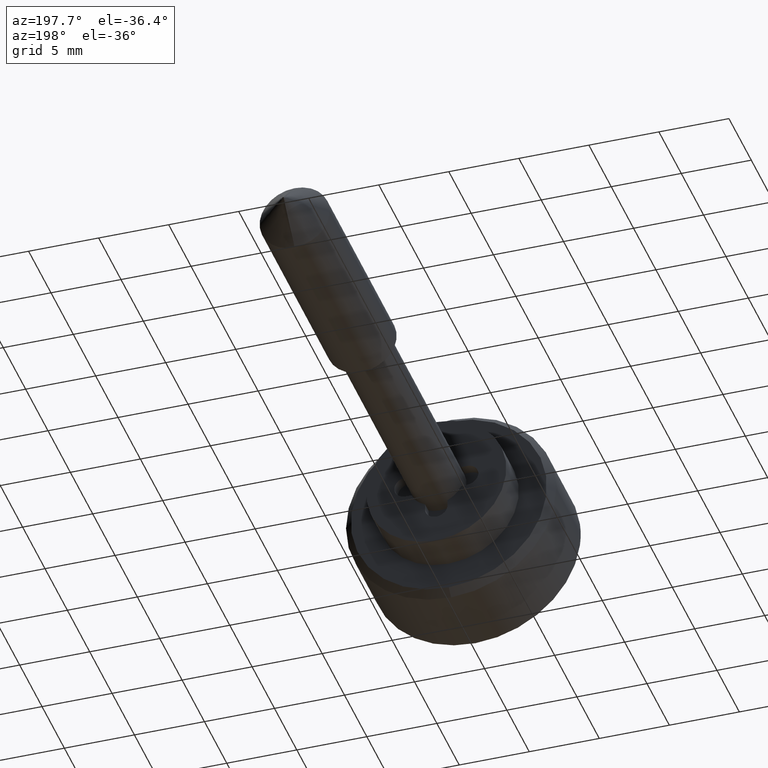
[diagram: clean part render]
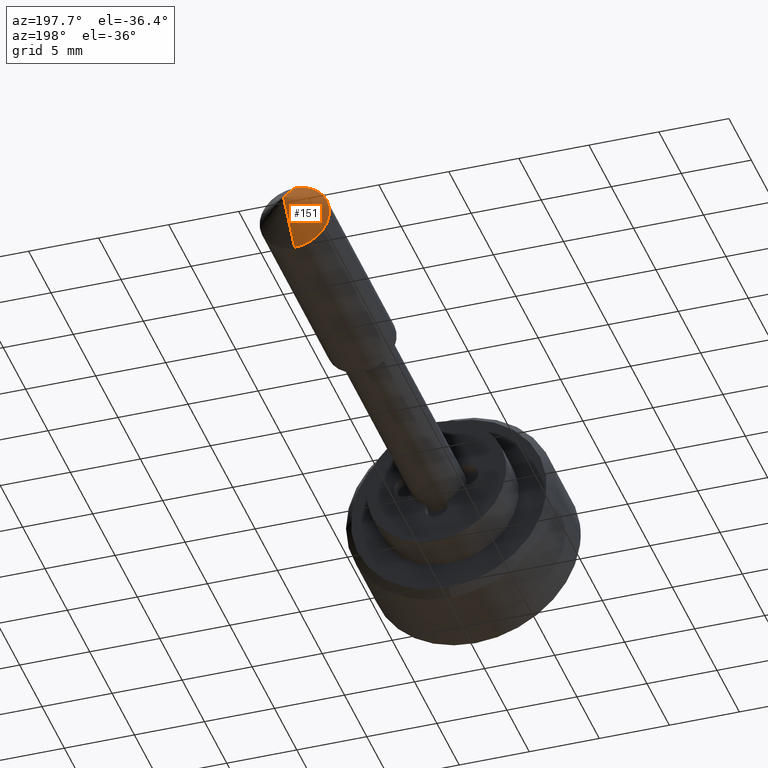
[diagram: same view with one face highlighted and labeled with its STEP entity id]
A machine part, auxiliary view. The second image highlights one B-rep face of the part: STEP entity #151.
In plain terms, the highlighted face is a freeform B-spline surface patch.
Its self-contained STEP definition (entity closure, byte-faithful):
#151=ADVANCED_FACE('',(#550),#549,.T.);
#549=( BOUNDED_SURFACE() B_SPLINE_SURFACE( 2,1,((#809,#810),(#811,#812),(#813,#814),(#815,#816),(#817,#818)), .UNSPECIFIED.,.F.,.F.,.F.) B_SPLINE_SURFACE_WITH_KNOTS((3,2,3),(2,2),(0.00000000000E+00,5.00000000000E-01,1.00000000000E+00),(0.00000000000E+00,1.00000000000E+00), .UNSPECIFIED. ) GEOMETRIC_REPRESENTATION_ITEM() RATIONAL_B_SPLINE_SURFACE(((1.00000000000E+00,1.00000000000E+00),(7.07106781187E-01,7.07106781187E-01),(1.00000000000E+00,1.00000000000E+00),(7.07106781187E-01,7.07106781187E-01),(1.00000000000E+00,1.00000000000E+00))) REPRESENTATION_ITEM('') SURFACE() );
#550=FACE_OUTER_BOUND('',#819,.T.);
#809=CARTESIAN_POINT('',(3.50000000000E+01,0.00000000000E+00,0.00000000000E+00));
#810=CARTESIAN_POINT('',(3.25000000000E+01,3.06161699787E-16,2.50000000000E+00));
#811=CARTESIAN_POINT('',(3.50000000000E+01,0.00000000000E+00,0.00000000000E+00));
#812=CARTESIAN_POINT('',(3.25000000000E+01,2.50000000000E+00,2.50000000000E+00));
#813=CARTESIAN_POINT('',(3.50000000000E+01,0.00000000000E+00,0.00000000000E+00));
#814=CARTESIAN_POINT('',(3.25000000000E+01,2.50000000000E+00,-1.53080849893E-16));
#815=CARTESIAN_POINT('',(3.50000000000E+01,0.00000000000E+00,0.00000000000E+00));
#816=CARTESIAN_POINT('',(3.25000000000E+01,2.50000000000E+00,-2.50000000000E+00));
#817=CARTESIAN_POINT('',(3.50000000000E+01,0.00000000000E+00,0.00000000000E+00));
#818=CARTESIAN_POINT('',(3.25000000000E+01,0.00000000000E+00,-2.50000000000E+00));
#819=EDGE_LOOP('',(#1015,#1016,#1017));
#1015=ORIENTED_EDGE('',*,*,#1119,.T.);
#1016=ORIENTED_EDGE('',*,*,#1121,.F.);
#1017=ORIENTED_EDGE('',*,*,#1120,.F.);
#1119=EDGE_CURVE('',#1744,#1736,#1745,.T.);
#1120=EDGE_CURVE('',#1744,#1737,#1751,.T.);
#1121=EDGE_CURVE('',#1737,#1736,#1757,.T.);
#1736=VERTEX_POINT('',#2147);
#1737=VERTEX_POINT('',#2148);
#1744=VERTEX_POINT('',#2153);
#1745=(BOUNDED_CURVE() B_SPLINE_CURVE(1,(#2154,#2155),.UNSPECIFIED.,.F.,.F.) B_SPLINE_CURVE_WITH_KNOTS((2,2),(0.00000000000E+00,1.00000000000E+00),.UNSPECIFIED.) CURVE() GEOMETRIC_REPRESENTATION_ITEM() RATIONAL_B_SPLINE_CURVE((1.00000000000E+00,1.00000000000E+00)) REPRESENTATION_ITEM('') );
#1751=(BOUNDED_CURVE() B_SPLINE_CURVE(1,(#2156,#2157),.UNSPECIFIED.,.F.,.F.) B_SPLINE_CURVE_WITH_KNOTS((2,2),(0.00000000000E+00,1.00000000000E+00),.UNSPECIFIED.) CURVE() GEOMETRIC_REPRESENTATION_ITEM() RATIONAL_B_SPLINE_CURVE((7.50000000000E-01,7.50000000000E-01)) REPRESENTATION_ITEM('') );
#1757=CIRCLE('',#2161,2.50000000000E+00);
#2147=CARTESIAN_POINT('',(3.25000000000E+01,1.48029736617E-16,-2.50000000000E+00));
#2148=CARTESIAN_POINT('',(3.25000000000E+01,0.00000000000E+00,2.50000000000E+00));
#2153=CARTESIAN_POINT('',(3.50000000000E+01,0.00000000000E+00,6.73533494602E-16));
#2154=CARTESIAN_POINT('',(3.50000000000E+01,0.00000000000E+00,0.00000000000E+00));
#2155=CARTESIAN_POINT('',(3.25000000000E+01,-6.12303176911E-16,-2.50000000000E+00));
#2156=CARTESIAN_POINT('',(3.50000000000E+01,0.00000000000E+00,0.00000000000E+00));
#2157=CARTESIAN_POINT('',(3.25000000000E+01,7.40148683083E-16,2.50000000000E+00));
#2158=CARTESIAN_POINT('',(3.25000000000E+01,0.00000000000E+00,0.00000000000E+00));
#2159=DIRECTION('',(-1.00000000000E+00,0.00000000000E+00,0.00000000000E+00));
#2160=DIRECTION('',(0.00000000000E+00,-1.22460635382E-16,1.00000000000E+00));
#2161=AXIS2_PLACEMENT_3D('',#2158,#2159,#2160);